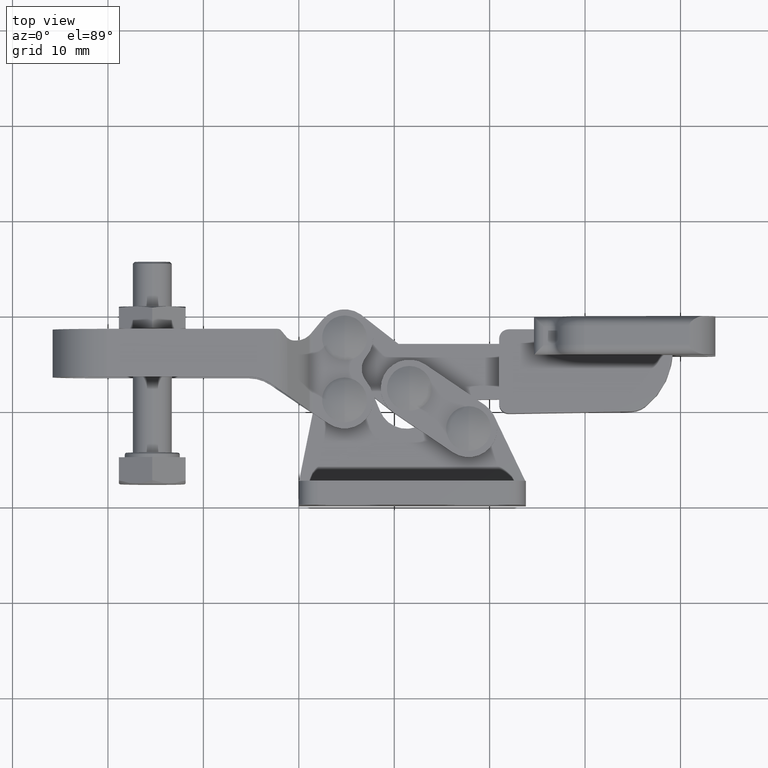
[diagram: clean part render]
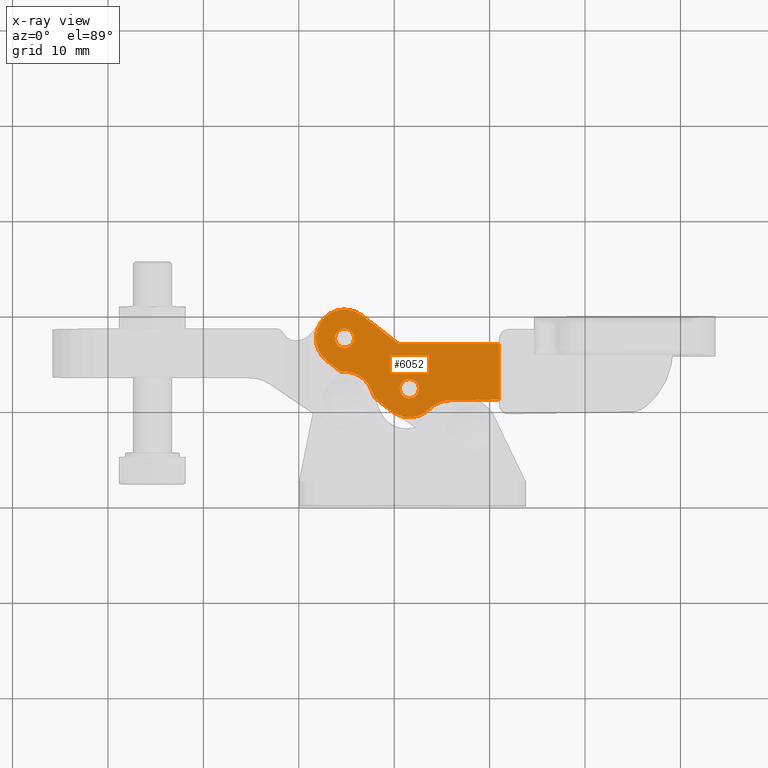
[diagram: x-ray — body ghosted, one internal face saturated and labeled with its STEP entity id]
A machine part, top view, then the same camera in x-ray: the body is ghosted and one INTERNAL B-rep face — a face not visible from any outside direction — is saturated and labeled: STEP entity #6052.
In plain terms, the highlighted planar face has unit normal (0, 0, 1).
Its self-contained STEP definition (entity closure, byte-faithful):
#122 = CARTESIAN_POINT ( 'NONE',  ( 4.431971470700254700, 14.07832870061517600, 0.002499999999999898100 ) ) ;
#172 = AXIS2_PLACEMENT_3D ( 'NONE', #4990, #414, #5801 ) ;
#189 = EDGE_CURVE ( 'NONE', #555, #2861, #8906, .T. ) ;
#247 = CIRCLE ( 'NONE', #729, 3.000000000000001300 ) ;
#405 = CIRCLE ( 'NONE', #671, 3.000000000000133200 ) ;
#414 = DIRECTION ( 'NONE',  ( 1.195700225862289400E-016, 3.529711471803213600E-022, 1.000000000000000000 ) ) ;
#511 = CIRCLE ( 'NONE', #804, 1.000000000000000400 ) ;
#555 = VERTEX_POINT ( 'NONE', #5954 ) ;
#607 = CIRCLE ( 'NONE', #9525, 0.9999999999999995600 ) ;
#671 = AXIS2_PLACEMENT_3D ( 'NONE', #8017, #7992, #7964 ) ;
#729 = AXIS2_PLACEMENT_3D ( 'NONE', #2723, #2121, #1537 ) ;
#804 = AXIS2_PLACEMENT_3D ( 'NONE', #8411, #8376, #8358 ) ;
#809 = ORIENTED_EDGE ( 'NONE', *, *, #8368, .T. ) ;
#834 = EDGE_CURVE ( 'NONE', #2861, #3815, #247, .T. ) ;
#864 = CARTESIAN_POINT ( 'NONE',  ( 10.44633366691438600, 17.00001914928718300, 0.002499999999999247600 ) ) ;
#1051 = EDGE_LOOP ( 'NONE', ( #3801, #5854 ) ) ;
#1058 = EDGE_CURVE ( 'NONE', #8687, #8200, #1109, .T. ) ;
#1109 = LINE ( 'NONE', #1817, #7485 ) ;
#1257 = EDGE_CURVE ( 'NONE', #5124, #8072, #4926, .T. ) ;
#1351 = AXIS2_PLACEMENT_3D ( 'NONE', #8300, #8030, #7373 ) ;
#1468 = VERTEX_POINT ( 'NONE', #7388 ) ;
#1537 = DIRECTION ( 'NONE',  ( 0.9999999999956427100, 2.952003684321875200E-006, -1.195728177207320100E-016 ) ) ;
#1674 = EDGE_CURVE ( 'NONE', #3426, #3230, #607, .T. ) ;
#1718 = FACE_BOUND ( 'NONE', #1051, .T. ) ;
#1800 = CARTESIAN_POINT ( 'NONE',  ( 4.791914488030925200, 17.60000245742333300, 0.002499999999999898100 ) ) ;
#1810 = DIRECTION ( 'NONE',  ( -1.195700225862290100E-016, -3.529711471803216000E-022, -1.000000000000000000 ) ) ;
#1817 = CARTESIAN_POINT ( 'NONE',  ( 2.949053368065685600, 15.23275449987403700, 0.002500000000000115000 ) ) ;
#1821 = DIRECTION ( 'NONE',  ( 0.9999999999956428200, 2.952003683165395200E-006, -1.194316455628564000E-016 ) ) ;
#1968 = ORIENTED_EDGE ( 'NONE', *, *, #7476, .T. ) ;
#1998 = PLANE ( 'NONE',  #172 ) ;
#2121 = DIRECTION ( 'NONE',  ( -1.195700225862290100E-016, -3.529711471803216000E-022, -1.000000000000000000 ) ) ;
#2155 = DIRECTION ( 'NONE',  ( -2.952003684069184500E-006, 0.9999999999956428200, 0.0000000000000000000 ) ) ;
#2275 = EDGE_CURVE ( 'NONE', #1468, #5030, #511, .T. ) ;
#2347 = EDGE_CURVE ( 'NONE', #8200, #4722, #405, .T. ) ;
#2482 = CIRCLE ( 'NONE', #4919, 2.999999999999999100 ) ;
#2624 = LINE ( 'NONE', #8805, #6465 ) ;
#2723 = CARTESIAN_POINT ( 'NONE',  ( 11.58575087524617700, 12.31111968809762100, 0.002499999999999030800 ) ) ;
#2759 = ORIENTED_EDGE ( 'NONE', *, *, #1257, .F. ) ;
#2861 = VERTEX_POINT ( 'NONE', #4154 ) ;
#2885 = LINE ( 'NONE', #9282, #3504 ) ;
#3124 = EDGE_CURVE ( 'NONE', #5030, #1468, #7638, .T. ) ;
#3205 = EDGE_CURVE ( 'NONE', #3230, #3426, #5161, .T. ) ;
#3230 = VERTEX_POINT ( 'NONE', #8683 ) ;
#3232 = VERTEX_POINT ( 'NONE', #8666 ) ;
#3370 = ORIENTED_EDGE ( 'NONE', *, *, #834, .T. ) ;
#3426 = VERTEX_POINT ( 'NONE', #8759 ) ;
#3437 = CARTESIAN_POINT ( 'NONE',  ( 6.634775607996048500, 19.96725041497269600, 0.002499999999999681300 ) ) ;
#3504 = VECTOR ( 'NONE', #7777, 1000.000000000000100 ) ;
#3668 = CARTESIAN_POINT ( 'NONE',  ( 20.99221437773261200, 11.18000723304593800, 0.002499999999997946600 ) ) ;
#3733 = EDGE_CURVE ( 'NONE', #3232, #8687, #2482, .T. ) ;
#3785 = EDGE_LOOP ( 'NONE', ( #8136, #7663, #3370, #5362, #809, #5095, #4850, #4977, #1968, #5871, #2759 ) ) ;
#3801 = ORIENTED_EDGE ( 'NONE', *, *, #2275, .F. ) ;
#3815 = VERTEX_POINT ( 'NONE', #4115 ) ;
#4115 = CARTESIAN_POINT ( 'NONE',  ( 9.742887084705140300, 9.943873809547467200, 0.002499999999999247600 ) ) ;
#4144 = LINE ( 'NONE', #8362, #8001 ) ;
#4154 = CARTESIAN_POINT ( 'NONE',  ( 13.72273279146177500, 10.20557740883379200, 0.002499999999998813900 ) ) ;
#4271 = LINE ( 'NONE', #4412, #7454 ) ;
#4306 = CARTESIAN_POINT ( 'NONE',  ( 10.58575087525053200, 12.31111673609393800, 0.002499999999999150000 ) ) ;
#4374 = VERTEX_POINT ( 'NONE', #4499 ) ;
#4412 = CARTESIAN_POINT ( 'NONE',  ( 15.85970585166633000, 11.10003512955694100, 0.002499999999998597100 ) ) ;
#4421 = VECTOR ( 'NONE', #2155, 1000.000000000000100 ) ;
#4454 = AXIS2_PLACEMENT_3D ( 'NONE', #8465, #9626, #9426 ) ;
#4499 = CARTESIAN_POINT ( 'NONE',  ( 7.938310806159001300, 11.34870487134344200, 0.002499999999999464500 ) ) ;
#4591 = DIRECTION ( 'NONE',  ( 0.9999999999956427100, 2.952003684321877300E-006, -1.195728177207321100E-016 ) ) ;
#4592 = DIRECTION ( 'NONE',  ( 1.195700225862290100E-016, 3.529711471803216000E-022, 1.000000000000000000 ) ) ;
#4602 = CARTESIAN_POINT ( 'NONE',  ( 4.791933676054844300, 11.10000245745170300, 0.002499999999999898100 ) ) ;
#4722 = VERTEX_POINT ( 'NONE', #7469 ) ;
#4740 = CARTESIAN_POINT ( 'NONE',  ( 20.99219719694409400, 17.00005028071517500, 0.002499999999997946600 ) ) ;
#4850 = ORIENTED_EDGE ( 'NONE', *, *, #1058, .T. ) ;
#4919 = AXIS2_PLACEMENT_3D ( 'NONE', #4602, #4592, #4591 ) ;
#4926 = LINE ( 'NONE', #5514, #4421 ) ;
#4927 = DIRECTION ( 'NONE',  ( 0.7890826525164090800, -0.6142870399883658700, -9.435041375818727300E-017 ) ) ;
#4977 = ORIENTED_EDGE ( 'NONE', *, *, #2347, .T. ) ;
#4990 = CARTESIAN_POINT ( 'NONE',  ( 20.99227276823840800, -8.599949719173285000, 0.002499999999997946600 ) ) ;
#5030 = VERTEX_POINT ( 'NONE', #4306 ) ;
#5095 = ORIENTED_EDGE ( 'NONE', *, *, #3733, .T. ) ;
#5124 = VERTEX_POINT ( 'NONE', #3668 ) ;
#5161 = CIRCLE ( 'NONE', #4454, 0.9999999999999995600 ) ;
#5362 = ORIENTED_EDGE ( 'NONE', *, *, #9749, .T. ) ;
#5478 = VECTOR ( 'NONE', #4927, 999.9999999999998900 ) ;
#5514 = CARTESIAN_POINT ( 'NONE',  ( 20.99227276823840800, -8.599949719173285000, 0.002499999999997946600 ) ) ;
#5674 = VERTEX_POINT ( 'NONE', #864 ) ;
#5707 = EDGE_CURVE ( 'NONE', #5674, #8072, #2885, .T. ) ;
#5784 = FACE_OUTER_BOUND ( 'NONE', #3785, .T. ) ;
#5801 = DIRECTION ( 'NONE',  ( 0.9999999999956428200, 2.952003684069184500E-006, -1.195700225867499300E-016 ) ) ;
#5854 = ORIENTED_EDGE ( 'NONE', *, *, #3124, .F. ) ;
#5871 = ORIENTED_EDGE ( 'NONE', *, *, #5707, .T. ) ;
#5954 = CARTESIAN_POINT ( 'NONE',  ( 15.85970585166633000, 11.10003512955695500, 0.002499999999998597100 ) ) ;
#6052 = ADVANCED_FACE ( 'NONE', ( #1718, #8277, #5784 ), #1998, .F. ) ;
#6224 = EDGE_CURVE ( 'NONE', #5124, #555, #4271, .T. ) ;
#6346 = ORIENTED_EDGE ( 'NONE', *, *, #3205, .F. ) ;
#6465 = VECTOR ( 'NONE', #8031, 999.9999999999998900 ) ;
#7373 = DIRECTION ( 'NONE',  ( 0.9999999999956428200, 2.952003684900116200E-006, -1.194316455628563000E-016 ) ) ;
#7388 = CARTESIAN_POINT ( 'NONE',  ( 12.58575087524181900, 12.31112264010130600, 0.002499999999998911500 ) ) ;
#7454 = VECTOR ( 'NONE', #9043, 1000.000000000000100 ) ;
#7469 = CARTESIAN_POINT ( 'NONE',  ( 6.634775607996048500, 19.96725041497269600, 0.002499999999999681300 ) ) ;
#7476 = EDGE_CURVE ( 'NONE', #4722, #5674, #7545, .T. ) ;
#7485 = VECTOR ( 'NONE', #9509, 1000.000000000000100 ) ;
#7545 = LINE ( 'NONE', #3437, #5478 ) ;
#7638 = CIRCLE ( 'NONE', #1351, 1.000000000000000400 ) ;
#7663 = ORIENTED_EDGE ( 'NONE', *, *, #189, .T. ) ;
#7777 = DIRECTION ( 'NONE',  ( 0.9999999999956428200, 2.952003684069184500E-006, -1.195700225867499300E-016 ) ) ;
#7928 = CARTESIAN_POINT ( 'NONE',  ( 2.949053368065691000, 15.23275449987404400, 0.002500000000000115000 ) ) ;
#7964 = DIRECTION ( 'NONE',  ( 0.9999999999956427100, 2.952003684321745100E-006, -1.195728177207267600E-016 ) ) ;
#7992 = DIRECTION ( 'NONE',  ( -1.195700225862290100E-016, -3.529711471803216000E-022, -1.000000000000000000 ) ) ;
#8001 = VECTOR ( 'NONE', #9186, 1000.000000000000100 ) ;
#8005 = AXIS2_PLACEMENT_3D ( 'NONE', #8107, #8117, #8120 ) ;
#8017 = CARTESIAN_POINT ( 'NONE',  ( 4.791914488030925200, 17.60000245742333300, 0.002499999999999898100 ) ) ;
#8030 = DIRECTION ( 'NONE',  ( -1.195700225862290100E-016, -3.529711471803216000E-022, -1.000000000000000000 ) ) ;
#8031 = DIRECTION ( 'NONE',  ( -0.3846181095401543000, 0.9230757876868821400, 4.598847022566920600E-017 ) ) ;
#8072 = VERTEX_POINT ( 'NONE', #4740 ) ;
#8107 = CARTESIAN_POINT ( 'NONE',  ( 15.85971470767755200, 8.100035129569814500, 0.002499999999998597100 ) ) ;
#8117 = DIRECTION ( 'NONE',  ( 1.195700225862290100E-016, 3.529711471803216000E-022, 1.000000000000000000 ) ) ;
#8120 = DIRECTION ( 'NONE',  ( 0.9999999999956427100, 2.952003684321666400E-006, -1.195728177207235800E-016 ) ) ;
#8136 = ORIENTED_EDGE ( 'NONE', *, *, #6224, .T. ) ;
#8200 = VERTEX_POINT ( 'NONE', #7928 ) ;
#8277 = FACE_BOUND ( 'NONE', #8283, .T. ) ;
#8283 = EDGE_LOOP ( 'NONE', ( #9849, #6346 ) ) ;
#8300 = CARTESIAN_POINT ( 'NONE',  ( 11.58575087524617700, 12.31111968809762100, 0.002499999999999030800 ) ) ;
#8358 = DIRECTION ( 'NONE',  ( 0.9999999999956428200, 2.952003684900116200E-006, -1.194316455628563000E-016 ) ) ;
#8362 = CARTESIAN_POINT ( 'NONE',  ( 7.938310806159001300, 11.34870487134344200, 0.002499999999999464500 ) ) ;
#8368 = EDGE_CURVE ( 'NONE', #4374, #3232, #2624, .T. ) ;
#8376 = DIRECTION ( 'NONE',  ( -1.195700225862290100E-016, -3.529711471803216000E-022, -1.000000000000000000 ) ) ;
#8411 = CARTESIAN_POINT ( 'NONE',  ( 11.58575087524617700, 12.31111968809762100, 0.002499999999999030800 ) ) ;
#8465 = CARTESIAN_POINT ( 'NONE',  ( 4.791914488030925200, 17.60000245742333300, 0.002499999999999898100 ) ) ;
#8666 = CARTESIAN_POINT ( 'NONE',  ( 7.561161039115453300, 12.25385678607225300, 0.002499999999999464500 ) ) ;
#8683 = CARTESIAN_POINT ( 'NONE',  ( 3.791914488035282600, 17.59999950541965000, 0.002500000000000017400 ) ) ;
#8687 = VERTEX_POINT ( 'NONE', #122 ) ;
#8759 = CARTESIAN_POINT ( 'NONE',  ( 5.791914488026567800, 17.60000540942701600, 0.002499999999999778900 ) ) ;
#8805 = CARTESIAN_POINT ( 'NONE',  ( 7.938310806159001300, 11.34870487134344200, 0.002499999999999464500 ) ) ;
#8906 = CIRCLE ( 'NONE', #8005, 3.000000000000213200 ) ;
#9043 = DIRECTION ( 'NONE',  ( -0.9998786307653173600, -0.01557959366845623900, 1.195555159632437200E-016 ) ) ;
#9186 = DIRECTION ( 'NONE',  ( -0.7890826525169242200, 0.6142870399877038400, 9.435041375824886600E-017 ) ) ;
#9282 = CARTESIAN_POINT ( 'NONE',  ( 10.44633366691438600, 17.00001914928718300, 0.002499999999999247600 ) ) ;
#9426 = DIRECTION ( 'NONE',  ( 0.9999999999956428200, 2.952003686634842200E-006, -1.194316455628564000E-016 ) ) ;
#9509 = DIRECTION ( 'NONE',  ( -0.7890826525164075200, 0.6142870399883676400, 9.435041375818708900E-017 ) ) ;
#9525 = AXIS2_PLACEMENT_3D ( 'NONE', #1800, #1810, #1821 ) ;
#9626 = DIRECTION ( 'NONE',  ( -1.195700225862290100E-016, -3.529711471803216000E-022, -1.000000000000000000 ) ) ;
#9749 = EDGE_CURVE ( 'NONE', #3815, #4374, #4144, .T. ) ;
#9849 = ORIENTED_EDGE ( 'NONE', *, *, #1674, .F. ) ;